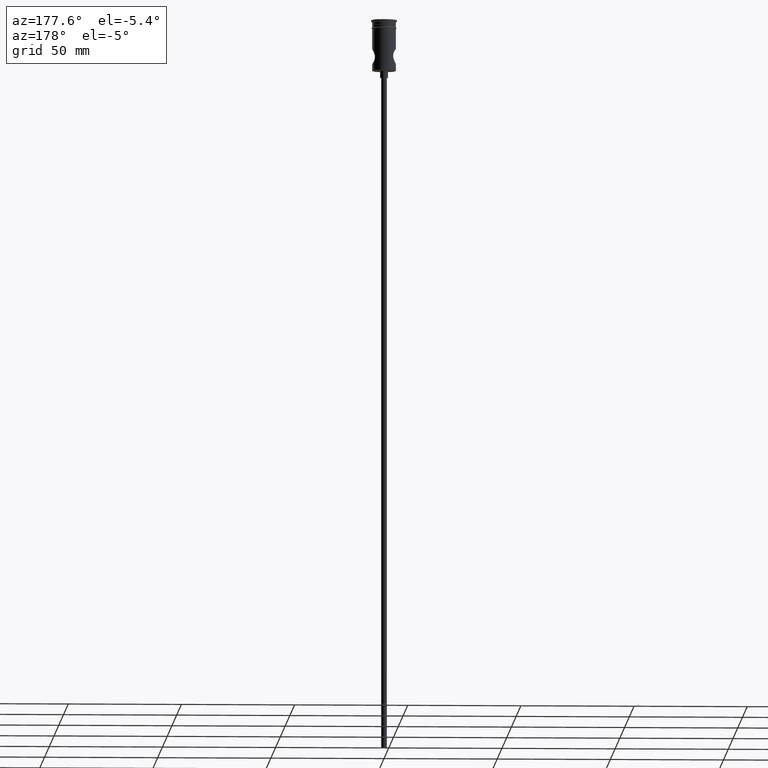
[diagram: clean part render]
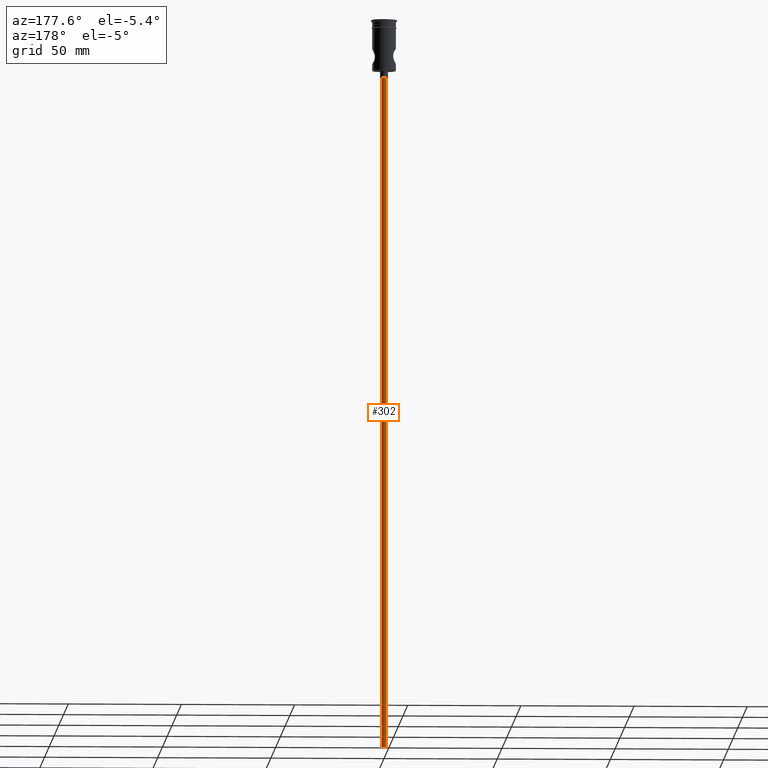
[diagram: same view with one face highlighted and labeled with its STEP entity id]
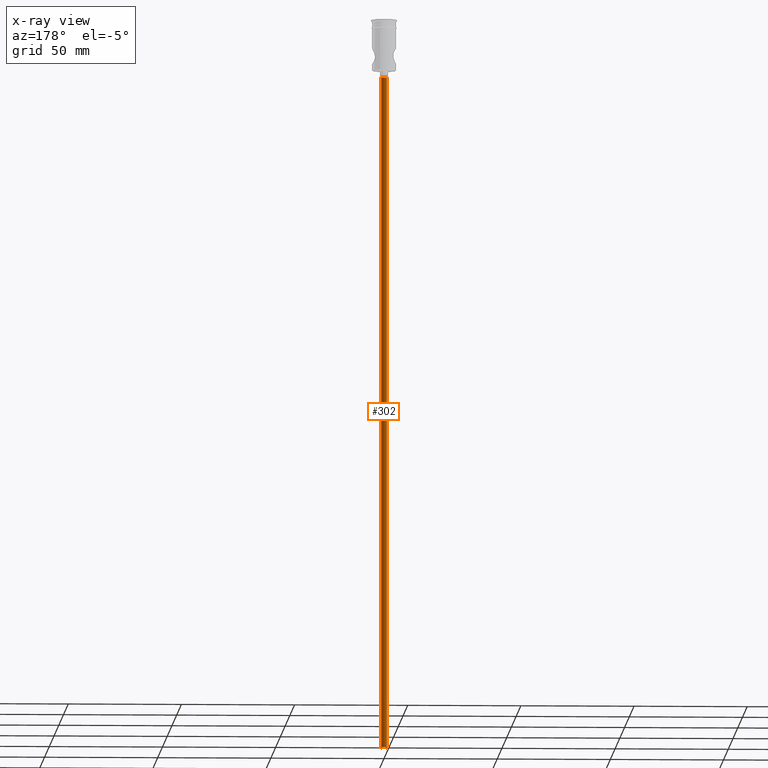
[diagram: x-ray of the same camera — body ghosted, the highlighted face saturated]
A machine part, auxiliary view. The second image highlights one B-rep face of the part: STEP entity #302.
The next image is the same camera in x-ray: the body ghosted, the highlighted face saturated — about 0% of this face is hidden behind the body in this view.
In plain terms, the highlighted cylindrical surface (edge-blend (fillet) strip) has radius 1.25 mm, axis along (-0, -0, 1).
Its self-contained STEP definition (entity closure, byte-faithful):
#19 = ORIENTED_EDGE ( 'NONE', *, *, #610, .T. ) ;
#69 = CARTESIAN_POINT ( 'NONE',  ( 0.000000000000000000, 0.000000000000000000, -322.5000000000000000 ) ) ;
#98 = DIRECTION ( 'NONE',  ( -1.000000000000000000, 0.000000000000000000, 0.000000000000000000 ) ) ;
#153 = VERTEX_POINT ( 'NONE', #841 ) ;
#192 = DIRECTION ( 'NONE',  ( -1.000000000000000000, 0.000000000000000000, 0.000000000000000000 ) ) ;
#217 = FACE_OUTER_BOUND ( 'NONE', #646, .T. ) ;
#243 = AXIS2_PLACEMENT_3D ( 'NONE', #1212, #773, #98 ) ;
#264 = VECTOR ( 'NONE', #1184, 1000.000000000000000 ) ;
#302 = ADVANCED_FACE ( 'NONE', ( #217 ), #555, .T. ) ;
#319 = CARTESIAN_POINT ( 'NONE',  ( 1.250000000000000000, 0.000000000000000000, -322.5000000000000000 ) ) ;
#427 = CARTESIAN_POINT ( 'NONE',  ( 0.000000000000000000, 0.000000000000000000, -322.5000000000000000 ) ) ;
#498 = CIRCLE ( 'NONE', #783, 1.250000000000000000 ) ;
#555 = CYLINDRICAL_SURFACE ( 'NONE', #707, 1.250000000000000000 ) ;
#569 = DIRECTION ( 'NONE',  ( -0.000000000000000000, -0.000000000000000000, 1.000000000000000000 ) ) ;
#610 = EDGE_CURVE ( 'NONE', #1320, #887, #1308, .T. ) ;
#612 = EDGE_CURVE ( 'NONE', #1320, #153, #498, .T. ) ;
#646 = EDGE_LOOP ( 'NONE', ( #1021, #19, #956, #1295 ) ) ;
#707 = AXIS2_PLACEMENT_3D ( 'NONE', #427, #569, #1014 ) ;
#731 = CARTESIAN_POINT ( 'NONE',  ( 1.250000000000000000, 0.000000000000000000, -25.50000000000000000 ) ) ;
#734 = VECTOR ( 'NONE', #840, 1000.000000000000000 ) ;
#739 = CARTESIAN_POINT ( 'NONE',  ( -1.250000000000000000, 1.530808498934191571E-16, -322.5000000000000000 ) ) ;
#773 = DIRECTION ( 'NONE',  ( 0.000000000000000000, 0.000000000000000000, -1.000000000000000000 ) ) ;
#783 = AXIS2_PLACEMENT_3D ( 'NONE', #69, #1191, #192 ) ;
#840 = DIRECTION ( 'NONE',  ( -0.000000000000000000, -0.000000000000000000, 1.000000000000000000 ) ) ;
#841 = CARTESIAN_POINT ( 'NONE',  ( 1.250000000000000000, 0.000000000000000000, -322.5000000000000000 ) ) ;
#874 = CIRCLE ( 'NONE', #243, 1.250000000000000000 ) ;
#887 = VERTEX_POINT ( 'NONE', #1376 ) ;
#956 = ORIENTED_EDGE ( 'NONE', *, *, #1073, .T. ) ;
#1014 = DIRECTION ( 'NONE',  ( 1.000000000000000000, 0.000000000000000000, 0.000000000000000000 ) ) ;
#1021 = ORIENTED_EDGE ( 'NONE', *, *, #612, .F. ) ;
#1038 = CARTESIAN_POINT ( 'NONE',  ( -1.250000000000000000, 1.530808498934191571E-16, -322.5000000000000000 ) ) ;
#1073 = EDGE_CURVE ( 'NONE', #887, #1232, #874, .T. ) ;
#1082 = EDGE_CURVE ( 'NONE', #153, #1232, #1431, .T. ) ;
#1184 = DIRECTION ( 'NONE',  ( -0.000000000000000000, -0.000000000000000000, 1.000000000000000000 ) ) ;
#1191 = DIRECTION ( 'NONE',  ( 0.000000000000000000, 0.000000000000000000, -1.000000000000000000 ) ) ;
#1212 = CARTESIAN_POINT ( 'NONE',  ( 0.000000000000000000, 0.000000000000000000, -25.50000000000000000 ) ) ;
#1232 = VERTEX_POINT ( 'NONE', #731 ) ;
#1295 = ORIENTED_EDGE ( 'NONE', *, *, #1082, .F. ) ;
#1308 = LINE ( 'NONE', #739, #734 ) ;
#1320 = VERTEX_POINT ( 'NONE', #1038 ) ;
#1376 = CARTESIAN_POINT ( 'NONE',  ( -1.250000000000000000, 1.530808498934191571E-16, -25.50000000000000000 ) ) ;
#1431 = LINE ( 'NONE', #319, #264 ) ;